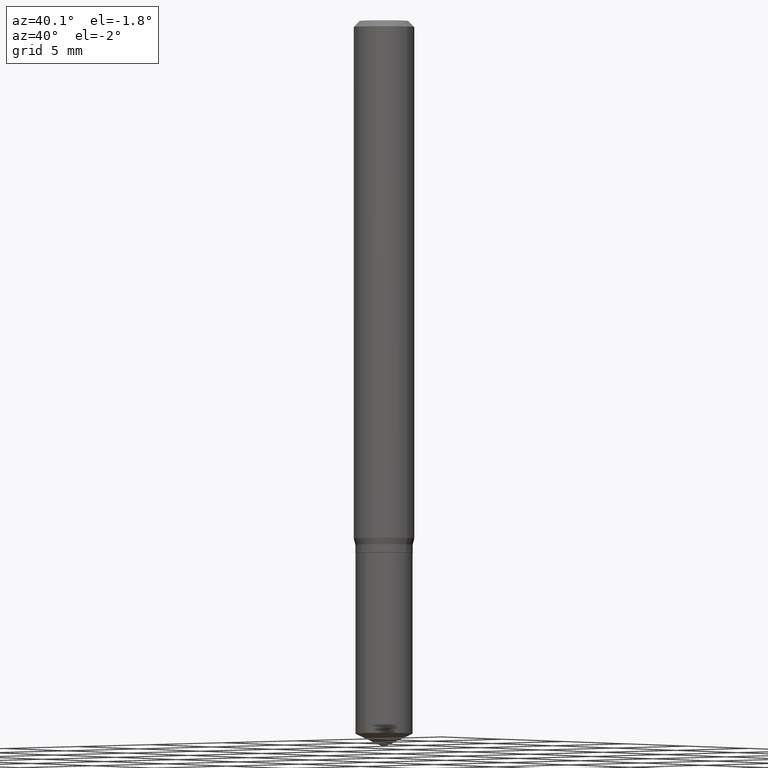
[diagram: clean part render]
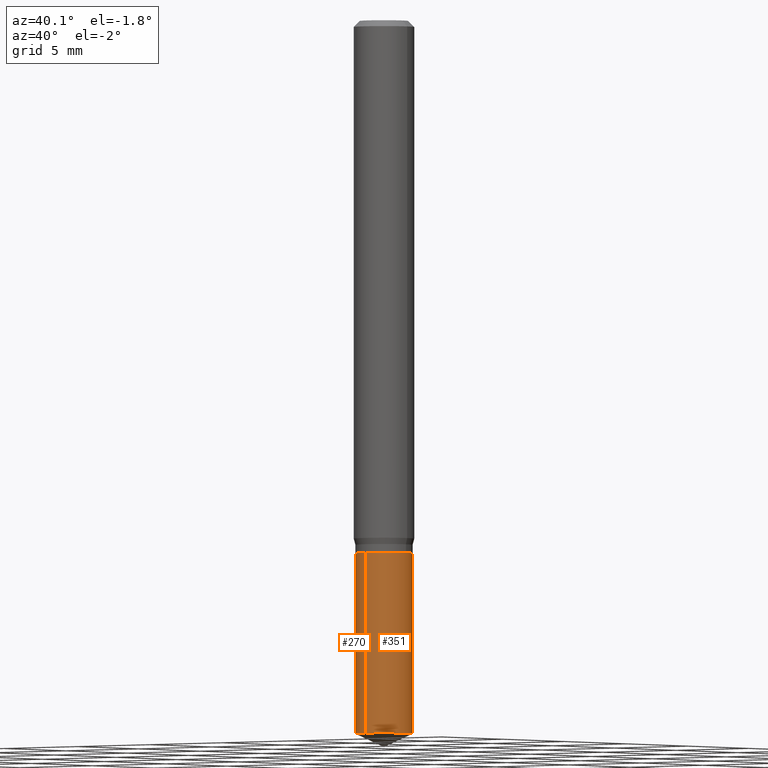
[diagram: same view with one multi-face feature highlighted, each face labeled with its STEP entity id]
A machine part, auxiliary view. The highlighted faces form ONE feature: a constant-radius fillet chain: 2 tangent blend faces with common blend radius 1.4999 mm. The faces share edges in the B-rep.
Their STEP definitions:
[1] entity #351 (Cylinder):
#24 = VERTEX_POINT ( 'NONE', #148 ) ;
#51 = DIRECTION ( 'NONE',  ( -6.982962677686265922E-15, -1.000000000000000000, 4.626330217890369336E-15 ) ) ;
#54 = CIRCLE ( 'NONE', #360, 0.05904999999999999832 ) ;
#61 = DIRECTION ( 'NONE',  ( -2.445399690415121530E-29, 3.491580316559632610E-15, 1.000000000000000000 ) ) ;
#71 = EDGE_CURVE ( 'NONE', #210, #24, #186, .T. ) ;
#78 = CARTESIAN_POINT ( 'NONE',  ( 4.195754854663751396E-16, 0.05904999999999614724, -1.100000000000000311 ) ) ;
#102 = CARTESIAN_POINT ( 'NONE',  ( 3.600840339969019464E-29, -5.141119304019454113E-15, -1.472464532785947355 ) ) ;
#108 = CARTESIAN_POINT ( 'NONE',  ( -4.123439461173471128E-16, -0.05905000000000384247, -1.099999999999999645 ) ) ;
#117 = CARTESIAN_POINT ( 'NONE',  ( 2.690015686803650369E-29, -3.840629472727460101E-15, -1.100000000000000089 ) ) ;
#128 = ORIENTED_EDGE ( 'NONE', *, *, #71, .F. ) ;
#136 = DIRECTION ( 'NONE',  ( -6.982962677686265922E-15, -1.000000000000000000, 4.626330217890369336E-15 ) ) ;
#138 = AXIS2_PLACEMENT_3D ( 'NONE', #431, #61, #352 ) ;
#144 = VERTEX_POINT ( 'NONE', #391 ) ;
#145 = VECTOR ( 'NONE', #256, 39.37007874015748143 ) ;
#148 = CARTESIAN_POINT ( 'NONE',  ( -4.123439461173471128E-16, -0.05905000000000384247, -1.099999999999999645 ) ) ;
#152 = EDGE_CURVE ( 'NONE', #24, #461, #455, .T. ) ;
#163 = ORIENTED_EDGE ( 'NONE', *, *, #471, .T. ) ;
#174 = DIRECTION ( 'NONE',  ( -2.445399690415121530E-29, 3.491580316559632610E-15, 1.000000000000000000 ) ) ;
#186 = LINE ( 'NONE', #108, #145 ) ;
#204 = ORIENTED_EDGE ( 'NONE', *, *, #152, .F. ) ;
#210 = VERTEX_POINT ( 'NONE', #466 ) ;
#225 = DIRECTION ( 'NONE',  ( -2.445399690415121810E-29, 3.491580316559632610E-15, 1.000000000000000000 ) ) ;
#239 = AXIS2_PLACEMENT_3D ( 'NONE', #117, #339, #51 ) ;
#253 = LINE ( 'NONE', #458, #422 ) ;
#256 = DIRECTION ( 'NONE',  ( -2.445399690415121810E-29, 3.491580316559632610E-15, 1.000000000000000000 ) ) ;
#317 = FACE_OUTER_BOUND ( 'NONE', #482, .T. ) ;
#339 = DIRECTION ( 'NONE',  ( -2.445399690415121530E-29, 3.491580316559632610E-15, 1.000000000000000000 ) ) ;
#346 = EDGE_CURVE ( 'NONE', #210, #144, #54, .T. ) ;
#350 = ORIENTED_EDGE ( 'NONE', *, *, #346, .T. ) ;
#351 = ADVANCED_FACE ( 'NONE', ( #317 ), #439, .T. ) ;
#352 = DIRECTION ( 'NONE',  ( -6.982962677686265922E-15, -1.000000000000000000, 4.626330217890369336E-15 ) ) ;
#360 = AXIS2_PLACEMENT_3D ( 'NONE', #102, #174, #136 ) ;
#391 = CARTESIAN_POINT ( 'NONE',  ( 4.195754854663751889E-16, 0.05904999999999487048, -1.472464532785947799 ) ) ;
#422 = VECTOR ( 'NONE', #225, 39.37007874015748143 ) ;
#431 = CARTESIAN_POINT ( 'NONE',  ( 2.690015686803650369E-29, -3.840629472727460101E-15, -1.100000000000000089 ) ) ;
#439 = CYLINDRICAL_SURFACE ( 'NONE', #138, 0.05904999999999999832 ) ;
#455 = CIRCLE ( 'NONE', #239, 0.05904999999999999832 ) ;
#458 = CARTESIAN_POINT ( 'NONE',  ( 4.195754854663659691E-16, 0.05904999999999615418, -1.100000000000000311 ) ) ;
#461 = VERTEX_POINT ( 'NONE', #78 ) ;
#466 = CARTESIAN_POINT ( 'NONE',  ( -4.123439461173379916E-16, -0.05905000000000514698, -1.472464532785947133 ) ) ;
#471 = EDGE_CURVE ( 'NONE', #144, #461, #253, .T. ) ;
#482 = EDGE_LOOP ( 'NONE', ( #350, #163, #204, #128 ) ) ;
[2] entity #270 (Cylinder):
#15 = DIRECTION ( 'NONE',  ( -6.982962677686265922E-15, -1.000000000000000000, 4.626330217890369336E-15 ) ) ;
#18 = CIRCLE ( 'NONE', #446, 0.05904999999999999832 ) ;
#24 = VERTEX_POINT ( 'NONE', #148 ) ;
#27 = EDGE_LOOP ( 'NONE', ( #490, #132, #353, #453 ) ) ;
#50 = CYLINDRICAL_SURFACE ( 'NONE', #158, 0.05904999999999999832 ) ;
#71 = EDGE_CURVE ( 'NONE', #210, #24, #186, .T. ) ;
#78 = CARTESIAN_POINT ( 'NONE',  ( 4.195754854663751396E-16, 0.05904999999999614724, -1.100000000000000311 ) ) ;
#88 = AXIS2_PLACEMENT_3D ( 'NONE', #267, #465, #340 ) ;
#108 = CARTESIAN_POINT ( 'NONE',  ( -4.123439461173471128E-16, -0.05905000000000384247, -1.099999999999999645 ) ) ;
#132 = ORIENTED_EDGE ( 'NONE', *, *, #370, .T. ) ;
#144 = VERTEX_POINT ( 'NONE', #391 ) ;
#145 = VECTOR ( 'NONE', #256, 39.37007874015748143 ) ;
#148 = CARTESIAN_POINT ( 'NONE',  ( -4.123439461173471128E-16, -0.05905000000000384247, -1.099999999999999645 ) ) ;
#158 = AXIS2_PLACEMENT_3D ( 'NONE', #194, #343, #15 ) ;
#171 = DIRECTION ( 'NONE',  ( -6.982962677686265922E-15, -1.000000000000000000, 4.626330217890369336E-15 ) ) ;
#173 = EDGE_CURVE ( 'NONE', #461, #24, #274, .T. ) ;
#186 = LINE ( 'NONE', #108, #145 ) ;
#194 = CARTESIAN_POINT ( 'NONE',  ( 2.690015686803650369E-29, -3.840629472727460101E-15, -1.100000000000000089 ) ) ;
#210 = VERTEX_POINT ( 'NONE', #466 ) ;
#225 = DIRECTION ( 'NONE',  ( -2.445399690415121810E-29, 3.491580316559632610E-15, 1.000000000000000000 ) ) ;
#241 = CARTESIAN_POINT ( 'NONE',  ( 3.600840339969019464E-29, -5.141119304019454113E-15, -1.472464532785947355 ) ) ;
#253 = LINE ( 'NONE', #458, #422 ) ;
#256 = DIRECTION ( 'NONE',  ( -2.445399690415121810E-29, 3.491580316559632610E-15, 1.000000000000000000 ) ) ;
#264 = FACE_OUTER_BOUND ( 'NONE', #27, .T. ) ;
#267 = CARTESIAN_POINT ( 'NONE',  ( 2.690015686803650369E-29, -3.840629472727460101E-15, -1.100000000000000089 ) ) ;
#270 = ADVANCED_FACE ( 'NONE', ( #264 ), #50, .T. ) ;
#274 = CIRCLE ( 'NONE', #88, 0.05904999999999999832 ) ;
#340 = DIRECTION ( 'NONE',  ( -6.982962677686265922E-15, -1.000000000000000000, 4.626330217890369336E-15 ) ) ;
#343 = DIRECTION ( 'NONE',  ( -2.445399690415121530E-29, 3.491580316559632610E-15, 1.000000000000000000 ) ) ;
#353 = ORIENTED_EDGE ( 'NONE', *, *, #71, .T. ) ;
#370 = EDGE_CURVE ( 'NONE', #144, #210, #18, .T. ) ;
#391 = CARTESIAN_POINT ( 'NONE',  ( 4.195754854663751889E-16, 0.05904999999999487048, -1.472464532785947799 ) ) ;
#422 = VECTOR ( 'NONE', #225, 39.37007874015748143 ) ;
#433 = DIRECTION ( 'NONE',  ( -2.445399690415121530E-29, 3.491580316559632610E-15, 1.000000000000000000 ) ) ;
#446 = AXIS2_PLACEMENT_3D ( 'NONE', #241, #433, #171 ) ;
#453 = ORIENTED_EDGE ( 'NONE', *, *, #173, .F. ) ;
#458 = CARTESIAN_POINT ( 'NONE',  ( 4.195754854663659691E-16, 0.05904999999999615418, -1.100000000000000311 ) ) ;
#461 = VERTEX_POINT ( 'NONE', #78 ) ;
#465 = DIRECTION ( 'NONE',  ( -2.445399690415121530E-29, 3.491580316559632610E-15, 1.000000000000000000 ) ) ;
#466 = CARTESIAN_POINT ( 'NONE',  ( -4.123439461173379916E-16, -0.05905000000000514698, -1.472464532785947133 ) ) ;
#471 = EDGE_CURVE ( 'NONE', #144, #461, #253, .T. ) ;
#490 = ORIENTED_EDGE ( 'NONE', *, *, #471, .F. ) ;